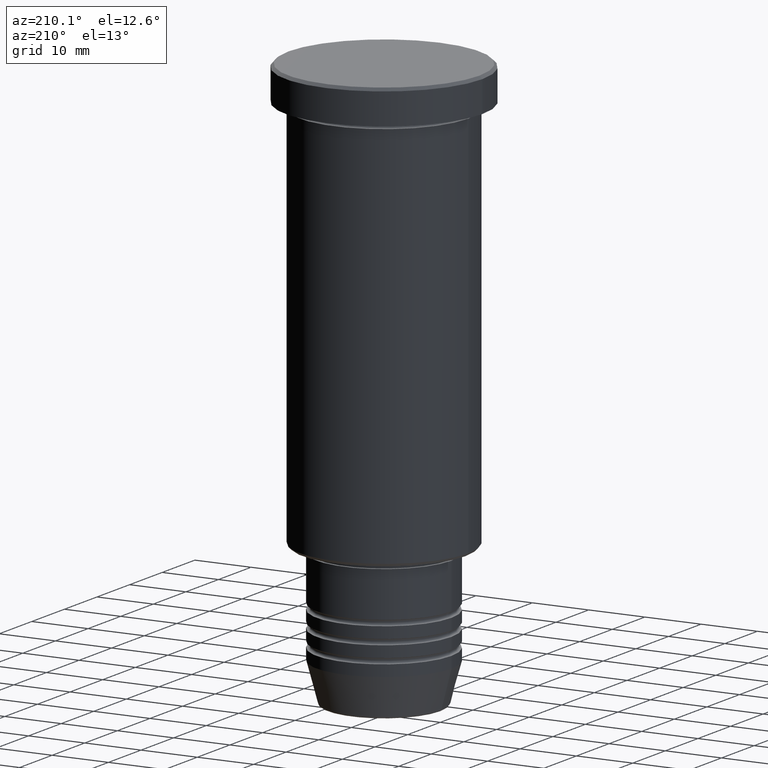
[diagram: clean part render]
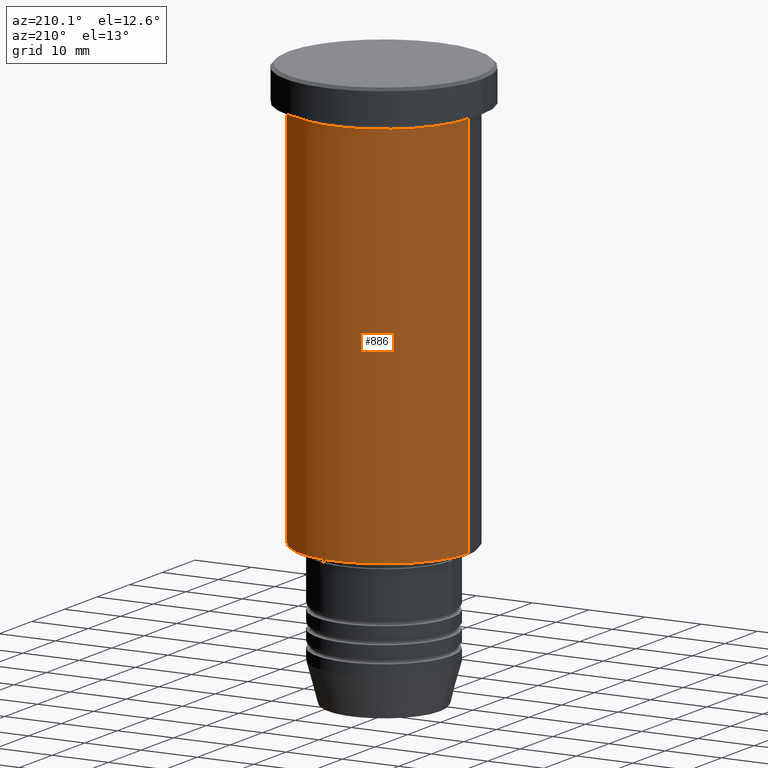
[diagram: same view with one face highlighted and labeled with its STEP entity id]
A machine part, auxiliary view. The second image highlights one B-rep face of the part: STEP entity #886.
In plain terms, the highlighted cylindrical surface (partial cylindrical patch) has radius 15 mm, axis along (-0, -0, 1).
Its self-contained STEP definition (entity closure, byte-faithful):
#45 = LINE ( 'NONE', #499, #98 ) ;
#46 = AXIS2_PLACEMENT_3D ( 'NONE', #673, #682, #875 ) ;
#83 = VERTEX_POINT ( 'NONE', #337 ) ;
#88 = DIRECTION ( 'NONE',  ( 1.000000000000000000, 0.000000000000000000, 0.000000000000000000 ) ) ;
#98 = VECTOR ( 'NONE', #1049, 1000.000000000000000 ) ;
#102 = EDGE_LOOP ( 'NONE', ( #1052, #1030, #706, #330 ) ) ;
#104 = CARTESIAN_POINT ( 'NONE',  ( -15.00000000000000000, 1.836970198721029589E-15, -75.49999999999998579 ) ) ;
#111 = DIRECTION ( 'NONE',  ( -1.000000000000000000, 0.000000000000000000, 0.000000000000000000 ) ) ;
#118 = CARTESIAN_POINT ( 'NONE',  ( 15.00000000000000000, 0.000000000000000000, 0.000000000000000000 ) ) ;
#330 = ORIENTED_EDGE ( 'NONE', *, *, #850, .F. ) ;
#332 = FACE_OUTER_BOUND ( 'NONE', #102, .T. ) ;
#337 = CARTESIAN_POINT ( 'NONE',  ( 15.00000000000000000, 0.000000000000000000, -6.999999999999995559 ) ) ;
#374 = EDGE_CURVE ( 'NONE', #635, #458, #515, .T. ) ;
#393 = VECTOR ( 'NONE', #687, 1000.000000000000000 ) ;
#458 = VERTEX_POINT ( 'NONE', #104 ) ;
#477 = CARTESIAN_POINT ( 'NONE',  ( 0.000000000000000000, 0.000000000000000000, -6.999999999999995559 ) ) ;
#499 = CARTESIAN_POINT ( 'NONE',  ( -15.00000000000000000, 1.836970198721029589E-15, 0.000000000000000000 ) ) ;
#515 = CIRCLE ( 'NONE', #1021, 15.00000000000000000 ) ;
#521 = CARTESIAN_POINT ( 'NONE',  ( 0.000000000000000000, 0.000000000000000000, -75.49999999999998579 ) ) ;
#530 = CARTESIAN_POINT ( 'NONE',  ( -15.00000000000000000, 1.836970198721029589E-15, -6.999999999999995559 ) ) ;
#591 = CYLINDRICAL_SURFACE ( 'NONE', #46, 15.00000000000000000 ) ;
#635 = VERTEX_POINT ( 'NONE', #1077 ) ;
#648 = DIRECTION ( 'NONE',  ( -0.000000000000000000, -0.000000000000000000, 1.000000000000000000 ) ) ;
#673 = CARTESIAN_POINT ( 'NONE',  ( 0.000000000000000000, 0.000000000000000000, 0.000000000000000000 ) ) ;
#682 = DIRECTION ( 'NONE',  ( -0.000000000000000000, -0.000000000000000000, 1.000000000000000000 ) ) ;
#687 = DIRECTION ( 'NONE',  ( -0.000000000000000000, -0.000000000000000000, 1.000000000000000000 ) ) ;
#706 = ORIENTED_EDGE ( 'NONE', *, *, #773, .F. ) ;
#737 = CIRCLE ( 'NONE', #962, 15.00000000000000000 ) ;
#773 = EDGE_CURVE ( 'NONE', #83, #1058, #737, .T. ) ;
#794 = EDGE_CURVE ( 'NONE', #458, #1058, #45, .T. ) ;
#850 = EDGE_CURVE ( 'NONE', #635, #83, #879, .T. ) ;
#851 = DIRECTION ( 'NONE',  ( -0.000000000000000000, -0.000000000000000000, 1.000000000000000000 ) ) ;
#875 = DIRECTION ( 'NONE',  ( 1.000000000000000000, 0.000000000000000000, 0.000000000000000000 ) ) ;
#879 = LINE ( 'NONE', #118, #393 ) ;
#886 = ADVANCED_FACE ( 'NONE', ( #332 ), #591, .T. ) ;
#962 = AXIS2_PLACEMENT_3D ( 'NONE', #477, #851, #88 ) ;
#1021 = AXIS2_PLACEMENT_3D ( 'NONE', #521, #648, #111 ) ;
#1030 = ORIENTED_EDGE ( 'NONE', *, *, #794, .T. ) ;
#1049 = DIRECTION ( 'NONE',  ( -0.000000000000000000, -0.000000000000000000, 1.000000000000000000 ) ) ;
#1052 = ORIENTED_EDGE ( 'NONE', *, *, #374, .T. ) ;
#1058 = VERTEX_POINT ( 'NONE', #530 ) ;
#1077 = CARTESIAN_POINT ( 'NONE',  ( 15.00000000000000000, 0.000000000000000000, -75.49999999999998579 ) ) ;